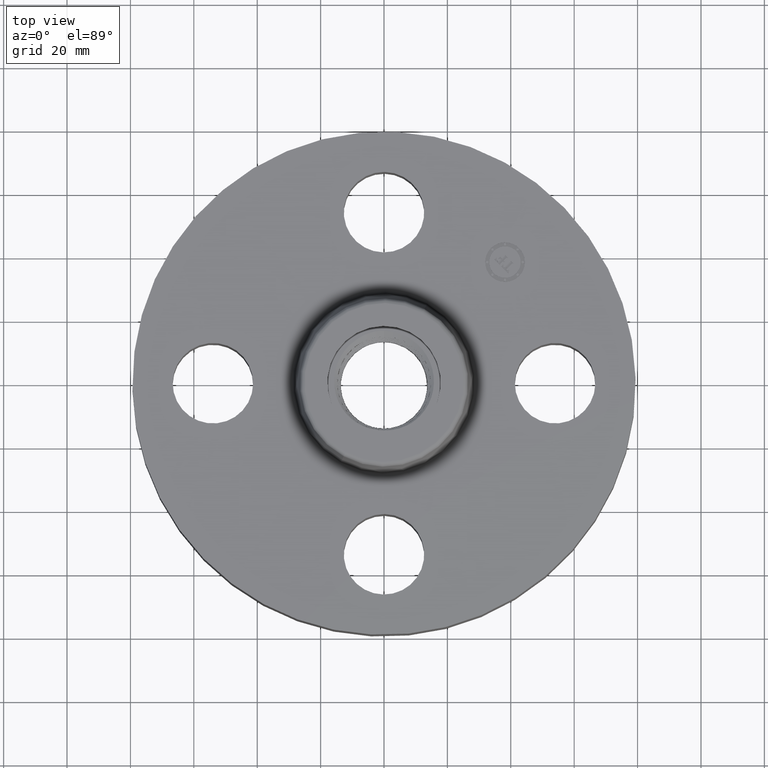
[diagram: clean part render]
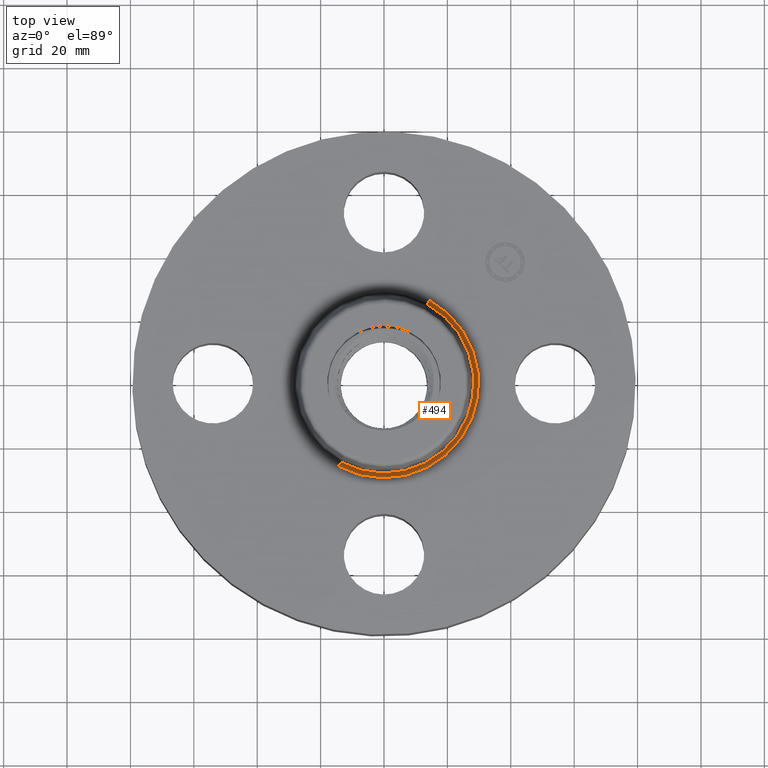
[diagram: same view with one face highlighted and labeled with its STEP entity id]
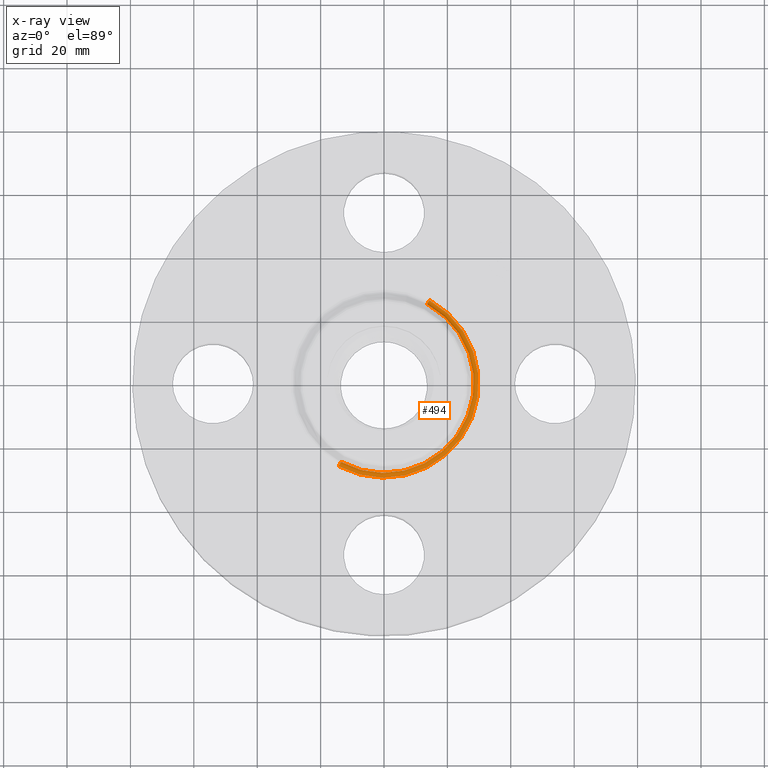
[diagram: x-ray of the same camera — body ghosted, the highlighted face saturated]
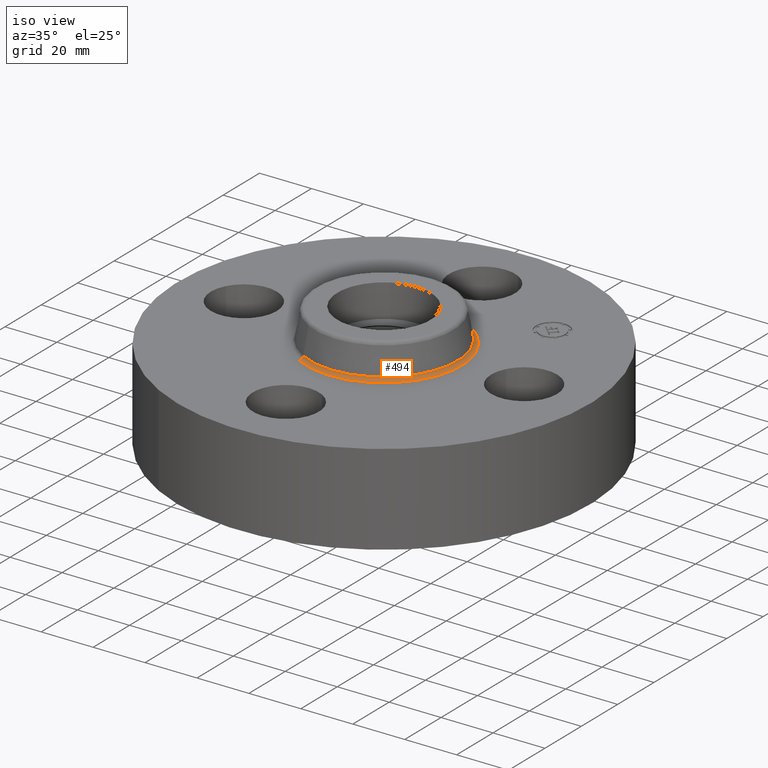
[diagram: same view with one face highlighted and labeled with its STEP entity id]
A machine part, top view. The second image highlights one B-rep face of the part: STEP entity #494.
The next image is the same camera in x-ray: the body ghosted, the highlighted face saturated — about 0% of this face is hidden behind the body in this view.
A second angle (iso view) of the same face is appended — the face is thin or edge-on in the first view.
In plain terms, the highlighted toroidal blend (fillet) surface has major radius 29.8538 mm and minor (blend) radius 1.524 mm.
Its self-contained STEP definition (entity closure, byte-faithful):
#458=AXIS2_PLACEMENT_3D('Torus Axis2P3D',#455,#456,#457) ;
#462=AXIS2_PLACEMENT_3D('Circle Axis2P3D',#460,#461,$) ;
#471=AXIS2_PLACEMENT_3D('Circle Axis2P3D',#469,#470,$) ;
#478=AXIS2_PLACEMENT_3D('Circle Axis2P3D',#476,#477,$) ;
#485=AXIS2_PLACEMENT_3D('Circle Axis2P3D',#483,#484,$) ;
#455=CARTESIAN_POINT('Axis2P3D Location',(0.,0.,1.44000000001)) ;
#460=CARTESIAN_POINT('Axis2P3D Location',(0.,0.,1.38000000001)) ;
#464=CARTESIAN_POINT('Vertex',(0.563490878489,1.03146313437,1.38000000001)) ;
#466=CARTESIAN_POINT('Vertex',(-0.563490878489,-1.03146313437,1.38000000001)) ;
#469=CARTESIAN_POINT('Axis2P3D Location',(0.563490878489,1.03146313437,1.44000000001)) ;
#473=CARTESIAN_POINT('Vertex',(0.535162359244,0.97960812772,1.42958110935)) ;
#476=CARTESIAN_POINT('Axis2P3D Location',(0.,0.,1.42958110935)) ;
#480=CARTESIAN_POINT('Vertex',(-0.535162359244,-0.97960812772,1.42958110935)) ;
#483=CARTESIAN_POINT('Axis2P3D Location',(-0.563490878489,-1.03146313437,1.44000000001)) ;
#456=DIRECTION('Axis2P3D Direction',(0.,0.,-0.0393700787402)) ;
#457=DIRECTION('Axis2P3D XDirection',(-0.0188750212049,-0.0345504945626,0.)) ;
#461=DIRECTION('Axis2P3D Direction',(0.,0.,-0.0393700787402)) ;
#470=DIRECTION('Axis2P3D Direction',(-0.0345504945626,0.0188750212049,0.)) ;
#477=DIRECTION('Axis2P3D Direction',(0.,0.,-0.0393700787402)) ;
#484=DIRECTION('Axis2P3D Direction',(0.0345504945626,-0.0188750212049,0.)) ;
#489=ORIENTED_EDGE('',*,*,#468,.F.) ;
#490=ORIENTED_EDGE('',*,*,#475,.T.) ;
#491=ORIENTED_EDGE('',*,*,#482,.T.) ;
#492=ORIENTED_EDGE('',*,*,#487,.F.) ;
#494=ADVANCED_FACE('PartBody',(#493),#459,.F.) ;
#463=CIRCLE('generated circle',#462,1.17534597788) ;
#472=CIRCLE('generated circle',#471,0.0600000000002) ;
#479=CIRCLE('generated circle',#478,1.11625751269) ;
#486=CIRCLE('generated circle',#485,0.0600000000002) ;
#459=TOROIDAL_SURFACE('homeo Torus',#458,1.17534597788,0.0600000000002) ;
#468=EDGE_CURVE('',#465,#467,#463,.T.) ;
#475=EDGE_CURVE('',#465,#474,#472,.T.) ;
#482=EDGE_CURVE('',#474,#481,#479,.T.) ;
#487=EDGE_CURVE('',#467,#481,#486,.T.) ;
#488=EDGE_LOOP('',(#489,#490,#491,#492)) ;
#493=FACE_OUTER_BOUND('',#488,.T.) ;
#465=VERTEX_POINT('',#464) ;
#467=VERTEX_POINT('',#466) ;
#474=VERTEX_POINT('',#473) ;
#481=VERTEX_POINT('',#480) ;